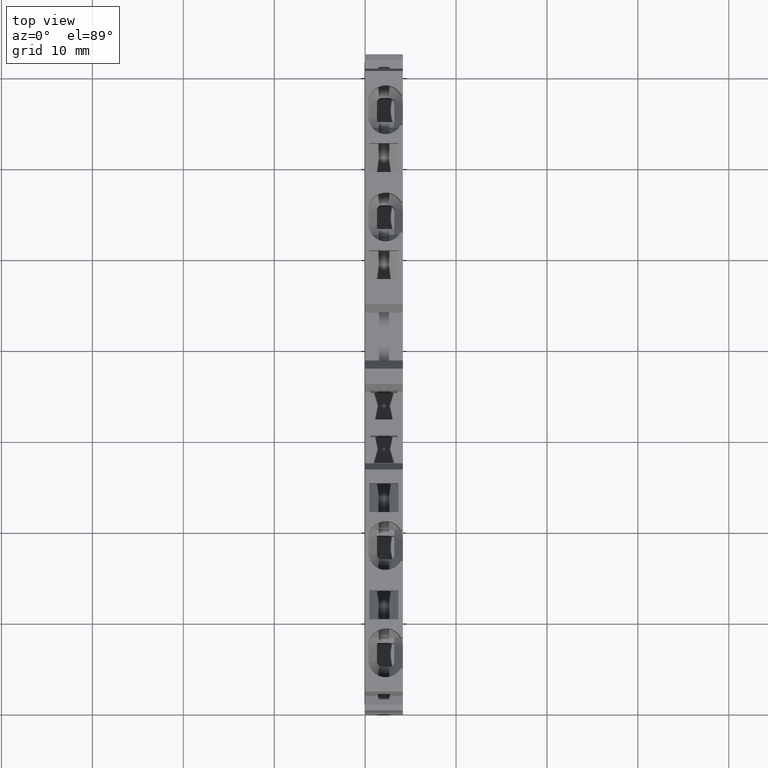
[diagram: clean part render]
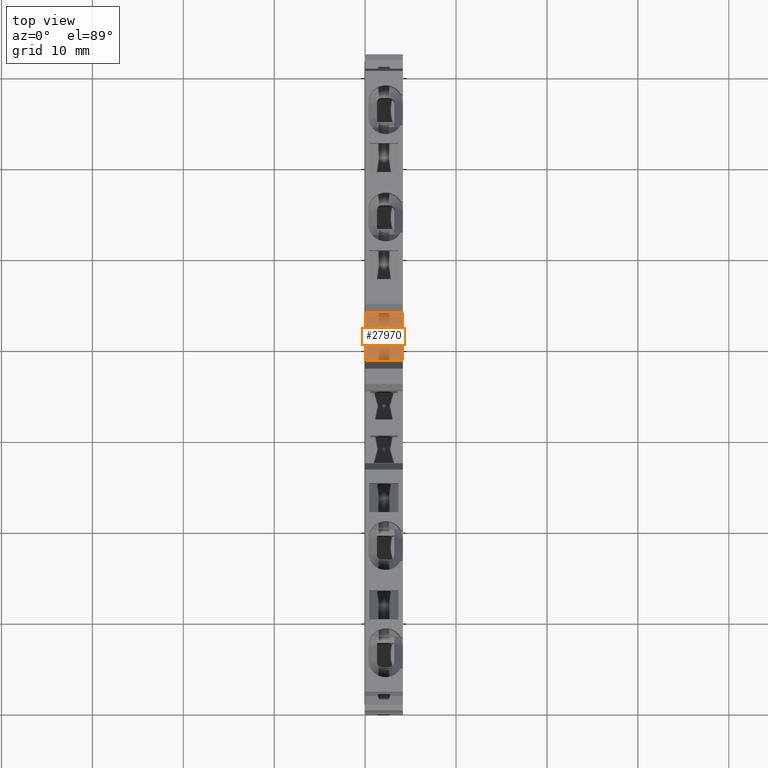
[diagram: same view with one face highlighted and labeled with its STEP entity id]
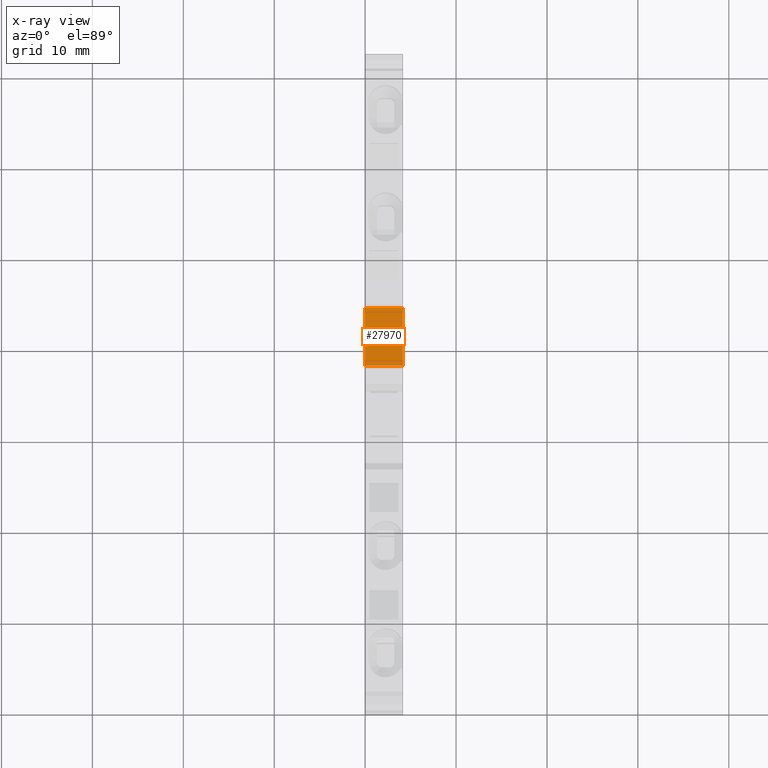
[diagram: x-ray of the same camera — body ghosted, the highlighted face saturated]
A machine part, top view. The second image highlights one B-rep face of the part: STEP entity #27970.
The next image is the same camera in x-ray: the body ghosted, the highlighted face saturated — about 0% of this face is hidden behind the body in this view.
In plain terms, the highlighted planar face has unit normal (0, -0, -1).
Its self-contained STEP definition (entity closure, byte-faithful):
#4070=CARTESIAN_POINT('',(34.5459302579226,30.3434253649531,
4.44089209850063E-16));
#4080=VERTEX_POINT('',#4070);
#4110=CARTESIAN_POINT('',(-2.46469511466785E-14,26.1017184872538,
-8.88178419700125E-16));
#4120=DIRECTION('',(-0.992546151641329,-0.12186934340509,0.));
#4130=VECTOR('',#4120,1.);
#4140=LINE('',#4110,#4130);
#4150=CARTESIAN_POINT('',(40.8237846670542,31.1142489619903,
4.44089209850063E-16));
#4160=VERTEX_POINT('',#4150);
#4170=EDGE_CURVE('',#4160,#4080,#4140,.T.);
#27540=CARTESIAN_POINT('',(34.5459302579226,30.3434253649531,-4.15));
#27550=VERTEX_POINT('',#27540);
#27580=CARTESIAN_POINT('',(34.5459302579226,30.3434253649531,
3.28626015289046E-14));
#27590=DIRECTION('',(0.,0.,-1.));
#27600=VECTOR('',#27590,1.);
#27610=LINE('',#27580,#27600);
#27620=EDGE_CURVE('',#4080,#27550,#27610,.T.);
#27740=CARTESIAN_POINT('',(34.5459302579226,30.3434253649531,
-8.88178419700125E-16));
#27750=DIRECTION('',(0.12186934340509,-0.992546151641329,0.));
#27760=DIRECTION('',(-0.992546151641329,-0.12186934340509,0.));
#27770=AXIS2_PLACEMENT_3D('',#27740,#27750,#27760);
#27780=PLANE('',#27770);
#27790=ORIENTED_EDGE('',*,*,#4170,.F.);
#27800=ORIENTED_EDGE('',*,*,#27620,.F.);
#27810=CARTESIAN_POINT('',(-1.75415237890775E-14,26.1017184872538,-4.15)
);
#27820=DIRECTION('',(-0.992546151641329,-0.12186934340509,0.));
#27830=VECTOR('',#27820,1.);
#27840=LINE('',#27810,#27830);
#27850=CARTESIAN_POINT('',(40.8237846670542,31.1142489619904,-4.15));
#27860=VERTEX_POINT('',#27850);
#27870=EDGE_CURVE('',#27860,#27550,#27840,.T.);
#27880=ORIENTED_EDGE('',*,*,#27870,.T.);
#27890=CARTESIAN_POINT('',(40.8237846670542,31.1142489619903,
3.28626015289046E-14));
#27900=DIRECTION('',(0.,0.,-1.));
#27910=VECTOR('',#27900,1.);
#27920=LINE('',#27890,#27910);
#27930=EDGE_CURVE('',#4160,#27860,#27920,.T.);
#27940=ORIENTED_EDGE('',*,*,#27930,.T.);
#27950=EDGE_LOOP('',(#27940,#27880,#27800,#27790));
#27960=FACE_OUTER_BOUND('',#27950,.T.);
#27970=ADVANCED_FACE('',(#27960),#27780,.F.);